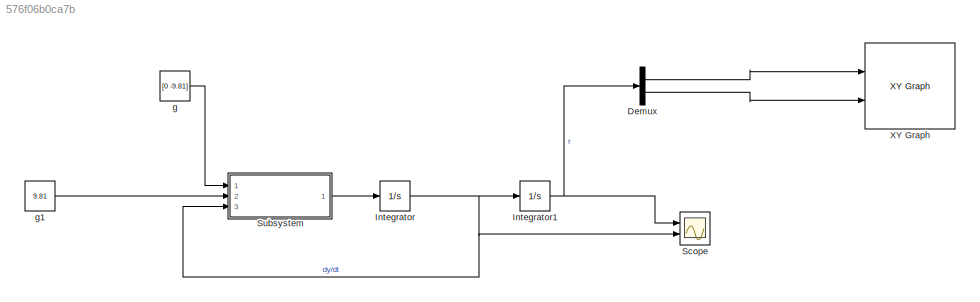
MODEL slx_576f06b0ca7b
KIND model
CONFIG AbsTol = auto
CONFIG EnableMultiTasking = off
CONFIG FixedStep = auto
CONFIG MaxStep = auto
CONFIG MinStep = auto
CONFIG RelTol = 1e-3
CONFIG SampleTimeConstraint = Unconstrained
CONFIG Solver = VariableStepAuto
CONFIG SolverName = VariableStepAuto
CONFIG StartTime = 0.0
CONFIG StopTime = 30
BLOCK [Demux] Demux
  DisplayOption = bar
  Outputs = 2
  Ports = [1, 2]
BLOCK [Integrator] Integrator
  InitialCondition = [100, 100]
  Ports = [1, 1]
BLOCK [Integrator] Integrator1
  InitialCondition = [0, 0]
  Ports = [1, 1]
BLOCK [Scope] Scope
  NumInputPorts = 2
  Ports = [2]
  ScopeSpecificationString = Simulink.scopes.TimeScopeBlockCfg('CurrentConfiguration', extmgr.ConfigurationSet(extmgr.Configuration('Core','General UI',true),extmgr.Configuration('Core','Source UI',true),extmgr.Configuration('Sources','WiredSimulink',true),extmgr.Configuration('Visuals','Time Domain',true,'SerializedDisplays',{struct('MinYLimReal','-1306.98144','MaxYLimReal','954.12135','YLabelReal','','MinYLimMag','  0.00000...<+1396ch>
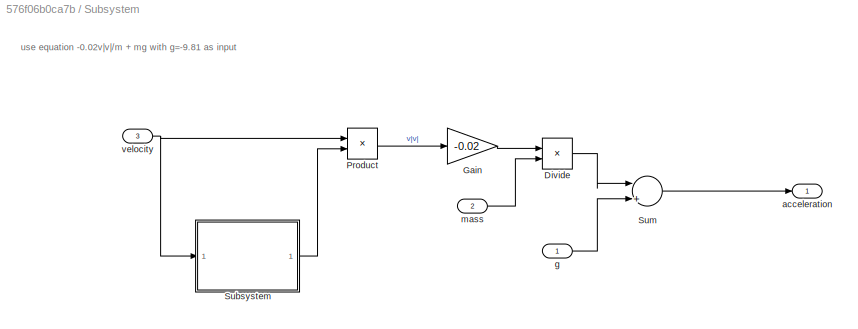
BLOCK [SubSystem] Subsystem
  Ports = [3, 1]
  RequestExecContextInheritance = off
  Variant = off
BLOCK [Product] Subsystem/Divide
  InputSameDT = off
  Inputs = */
  OutDataTypeStr = Inherit: Inherit via internal rule
  Ports = [2, 1]
  RndMeth = Floor
  SaturateOnIntegerOverflow = off
BLOCK [Gain] Subsystem/Gain
  Gain = -0.02
  OutDataTypeStr = Inherit: Inherit via internal rule
  ParamDataTypeStr = Inherit: Inherit via internal rule
  SaturateOnIntegerOverflow = off
BLOCK [Product] Subsystem/Product
  InputSameDT = off
  OutDataTypeStr = Inherit: Inherit via internal rule
  Ports = [2, 1]
  RndMeth = Floor
  SaturateOnIntegerOverflow = off
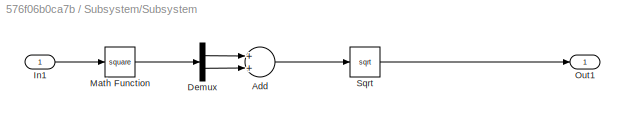
BLOCK [SubSystem] Subsystem/Subsystem
  Ports = [1, 1]
  RequestExecContextInheritance = off
  Variant = off
BLOCK [Sum] Subsystem/Subsystem/Add
  InputSameDT = off
  OutDataTypeStr = Inherit: Inherit via internal rule
  Ports = [2, 1]
  SaturateOnIntegerOverflow = off
BLOCK [Demux] Subsystem/Subsystem/Demux
  DisplayOption = bar
  Outputs = 2
  Ports = [1, 2]
BLOCK [Inport] Subsystem/Subsystem/In1
  IconDisplay = Port number
BLOCK [Math] Subsystem/Subsystem/Math Function
  Operator = square
  Ports = [1, 1]
BLOCK [Outport] Subsystem/Subsystem/Out1
  IconDisplay = Port number
BLOCK [Sqrt] Subsystem/Subsystem/Sqrt
BLOCK [Sum] Subsystem/Sum
  InputSameDT = off
  Inputs = |++
  OutDataTypeStr = Inherit: Inherit via internal rule
  Ports = [2, 1]
  SaturateOnIntegerOverflow = off
BLOCK [Outport] Subsystem/acceleration 
  IconDisplay = Port number
BLOCK [Inport] Subsystem/g
  IconDisplay = Port number
BLOCK [Inport] Subsystem/mass 
  IconDisplay = Port number
  Port = 2
BLOCK [Inport] Subsystem/velocity
  IconDisplay = Port number
  Port = 3
BLOCK [Reference] XY Graph  REF=simulink/Sinks/XY Graph
  Ports = [2]
  SourceBlock = simulink/Sinks/XY Graph
  SourceProductBaseCode = SL
  SourceProductName = Simulink
  SourceType = XY scope.
BLOCK [Constant] g
  Value = [0 -9.81]
BLOCK [Constant] g1
  Value = 9.81
ANNOTATION Subsystem: use equation -0.02v|v|/m + mg with g=-9.81 as input
LINE Demux:1 -> XY Graph:1
LINE Demux:2 -> XY Graph:2
NET Integrator1:1 -> Demux:1, Scope:1
NET Integrator:1 -> Integrator1:1, Scope:2, Subsystem:3
LINE Subsystem/Divide:1 -> Subsystem/Sum:1
LINE Subsystem/Gain:1 -> Subsystem/Divide:1
LINE Subsystem/Product:1 -> Subsystem/Gain:1
LINE Subsystem/Subsystem/Add:1 -> Subsystem/Subsystem/Sqrt:1
LINE Subsystem/Subsystem/Demux:1 -> Subsystem/Subsystem/Add:1
LINE Subsystem/Subsystem/Demux:2 -> Subsystem/Subsystem/Add:2
LINE Subsystem/Subsystem/In1:1 -> Subsystem/Subsystem/Math Function:1
LINE Subsystem/Subsystem/Math Function:1 -> Subsystem/Subsystem/Demux:1
LINE Subsystem/Subsystem/Sqrt:1 -> Subsystem/Subsystem/Out1:1
LINE Subsystem/Subsystem:1 -> Subsystem/Product:2
LINE Subsystem/Sum:1 -> Subsystem/acceleration :1
LINE Subsystem/g:1 -> Subsystem/Sum:2
LINE Subsystem/mass :1 -> Subsystem/Divide:2
NET Subsystem/velocity:1 -> Subsystem/Product:1, Subsystem/Subsystem:1
LINE Subsystem:1 -> Integrator:1
LINE g1:1 -> Subsystem:2
LINE g:1 -> Subsystem:1
note: NET lines group one-source signal fan-out (src -> all destinations, sorted); 1:1 wires keep LINE
